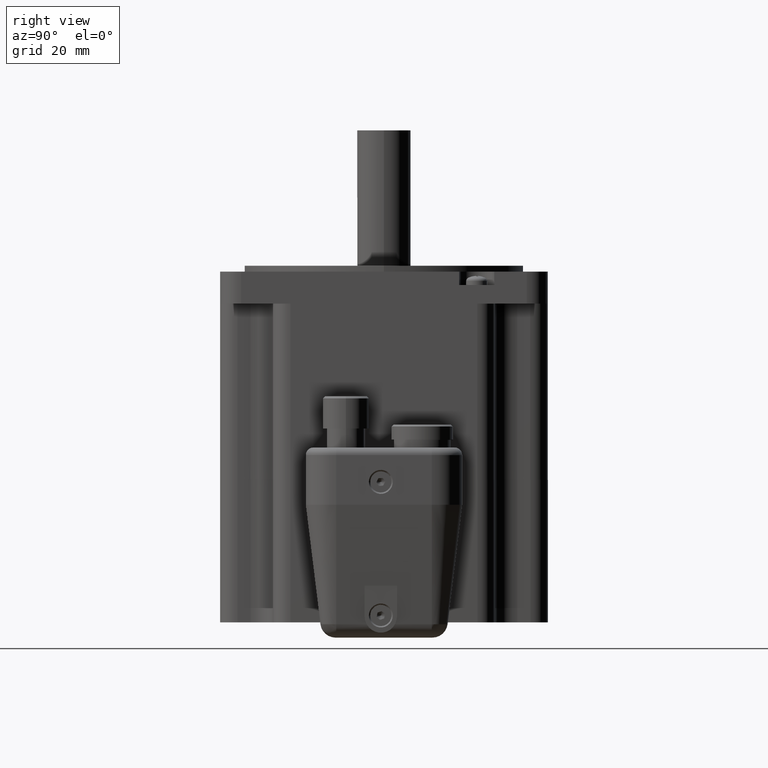
[diagram: clean part render]
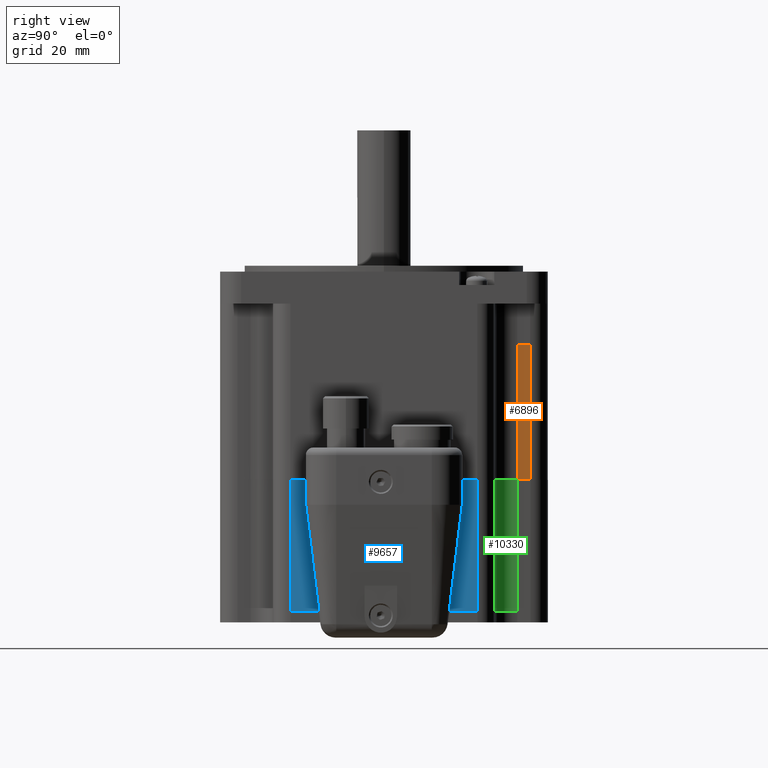
[diagram: same view with three faces highlighted in distinct colors, each labeled with its STEP entity id]
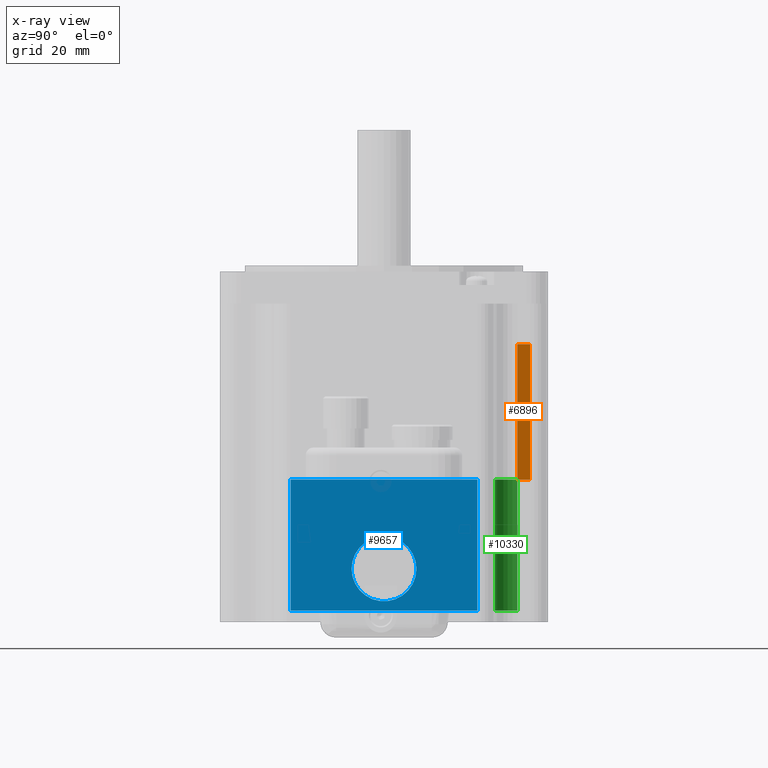
[diagram: x-ray of the same camera — body ghosted, the three highlighted faces saturated]
A machine part, right view with three faces highlighted in distinct colors.
The next image is the same camera in x-ray (body ghosted, the three faces saturated) — at least one of them is partly hidden behind the body in this view.
Their STEP definitions:

[orange] entity #6896 — the highlighted planar face has unit normal (1, 0, 0).
#6565=CARTESIAN_POINT('',(29.050000000000008,38.324999999999996,-36.899999999999892));
#6566=VERTEX_POINT('',#6565);
#6574=CARTESIAN_POINT('',(29.050000000000008,34.950000000000003,-36.899999999999892));
#6575=VERTEX_POINT('',#6574);
#6576=CARTESIAN_POINT('',(29.050000000000011,34.950000000000003,-36.899999999999906));
#6577=DIRECTION('',(0.0,1.0,0.0));
#6578=VECTOR('',#6577,3.374999999999993);
#6579=LINE('',#6576,#6578);
#6580=EDGE_CURVE('',#6575,#6566,#6579,.T.);
#6838=CARTESIAN_POINT('',(29.050000000000011,34.949999999999982,-1.499999999999947));
#6839=VERTEX_POINT('',#6838);
#6840=CARTESIAN_POINT('',(29.050000000000011,34.950000000000003,-36.899999999999892));
#6841=DIRECTION('',(0.0,0.0,1.0));
#6842=VECTOR('',#6841,35.399999999999949);
#6843=LINE('',#6840,#6842);
#6844=EDGE_CURVE('',#6575,#6839,#6843,.T.);
#6873=CARTESIAN_POINT('',(29.050000000000011,42.924999999999983,-94.899999999999977));
#6874=DIRECTION('',(1.0,0.0,0.0));
#6875=DIRECTION('',(0.0,0.0,-1.0));
#6876=AXIS2_PLACEMENT_3D('',#6873,#6874,#6875);
#6877=PLANE('',#6876);
#6878=ORIENTED_EDGE('',*,*,#6580,.T.);
#6879=CARTESIAN_POINT('',(29.050000000000011,38.324999999999982,-1.499999999999947));
#6880=VERTEX_POINT('',#6879);
#6881=CARTESIAN_POINT('',(29.050000000000011,38.324999999999996,-1.499999999999947));
#6882=DIRECTION('',(0.0,0.0,-1.0));
#6883=VECTOR('',#6882,35.399999999999949);
#6884=LINE('',#6881,#6883);
#6885=EDGE_CURVE('',#6880,#6566,#6884,.T.);
#6886=ORIENTED_EDGE('',*,*,#6885,.F.);
#6887=CARTESIAN_POINT('',(29.050000000000011,38.324999999999982,-1.499999999999947));
#6888=DIRECTION('',(0.0,-1.0,0.0));
#6889=VECTOR('',#6888,3.375);
#6890=LINE('',#6887,#6889);
#6891=EDGE_CURVE('',#6880,#6839,#6890,.T.);
#6892=ORIENTED_EDGE('',*,*,#6891,.T.);
#6893=ORIENTED_EDGE('',*,*,#6844,.F.);
#6894=EDGE_LOOP('',(#6878,#6886,#6892,#6893));
#6895=FACE_OUTER_BOUND('',#6894,.T.);
#6896=ADVANCED_FACE('',(#6895),#6877,.T.);

[blue] entity #9657 — the highlighted planar face has unit normal (1, 0, 0).
#8183=CARTESIAN_POINT('',(42.924999999999997,-8.474999999999991,-60.299999999999905));
#8184=VERTEX_POINT('',#8183);
#8185=CARTESIAN_POINT('',(42.924999999999997,0.025000000000013,-60.299999999999905));
#8186=DIRECTION('',(-1.0,0.0,0.0));
#8187=DIRECTION('',(0.0,1.0,0.0));
#8188=AXIS2_PLACEMENT_3D('',#8185,#8186,#8187);
#8189=CIRCLE('',#8188,8.500000000000004);
#8190=EDGE_CURVE('',#8184,#8184,#8189,.T.);
#9589=CARTESIAN_POINT('',(42.924999999999997,24.475000000000016,-71.299999999999912));
#9590=VERTEX_POINT('',#9589);
#9606=CARTESIAN_POINT('',(42.924999999999997,24.475000000000016,-36.899999999999913));
#9607=VERTEX_POINT('',#9606);
#9615=CARTESIAN_POINT('',(42.924999999999997,24.475000000000016,-71.299999999999912));
#9616=DIRECTION('',(0.0,0.0,1.0));
#9617=VECTOR('',#9616,34.399999999999999);
#9618=LINE('',#9615,#9617);
#9619=EDGE_CURVE('',#9590,#9607,#9618,.T.);
#9624=CARTESIAN_POINT('',(42.924999999999997,-24.424999999999994,-71.299999999999912));
#9625=DIRECTION('',(1.0,0.0,0.0));
#9626=DIRECTION('',(0.0,1.0,0.0));
#9627=AXIS2_PLACEMENT_3D('',#9624,#9625,#9626);
#9628=PLANE('',#9627);
#9629=CARTESIAN_POINT('',(42.924999999999997,-24.424999999999994,-71.299999999999912));
#9630=VERTEX_POINT('',#9629);
#9631=CARTESIAN_POINT('',(42.924999999999997,24.475000000000012,-71.299999999999912));
#9632=DIRECTION('',(0.0,-1.0,0.0));
#9633=VECTOR('',#9632,48.900000000000006);
#9634=LINE('',#9631,#9633);
#9635=EDGE_CURVE('',#9590,#9630,#9634,.T.);
#9636=ORIENTED_EDGE('',*,*,#9635,.F.);
#9637=ORIENTED_EDGE('',*,*,#9619,.T.);
#9638=CARTESIAN_POINT('',(42.924999999999997,-24.424999999999997,-36.899999999999913));
#9639=VERTEX_POINT('',#9638);
#9640=CARTESIAN_POINT('',(42.924999999999997,-24.424999999999994,-36.899999999999913));
#9641=DIRECTION('',(0.0,1.0,0.0));
#9642=VECTOR('',#9641,48.900000000000006);
#9643=LINE('',#9640,#9642);
#9644=EDGE_CURVE('',#9639,#9607,#9643,.T.);
#9645=ORIENTED_EDGE('',*,*,#9644,.F.);
#9646=CARTESIAN_POINT('',(42.924999999999997,-24.424999999999994,-71.299999999999912));
#9647=DIRECTION('',(0.0,0.0,1.0));
#9648=VECTOR('',#9647,34.399999999999999);
#9649=LINE('',#9646,#9648);
#9650=EDGE_CURVE('',#9630,#9639,#9649,.T.);
#9651=ORIENTED_EDGE('',*,*,#9650,.F.);
#9652=EDGE_LOOP('',(#9636,#9637,#9645,#9651));
#9653=FACE_OUTER_BOUND('',#9652,.T.);
#9654=ORIENTED_EDGE('',*,*,#8190,.T.);
#9655=EDGE_LOOP('',(#9654));
#9656=FACE_BOUND('',#9655,.T.);
#9657=ADVANCED_FACE('',(#9653,#9656),#9628,.T.);

[green] entity #10330 — the highlighted cylindrical surface (edge-blend (fillet) strip) has radius 5.9 mm, axis along (0, 0, 1).
#10272=CARTESIAN_POINT('',(29.024999999999991,34.975000000000016,-71.299999999999912));
#10273=VERTEX_POINT('',#10272);
#10281=CARTESIAN_POINT('',(29.024999999999991,34.975000000000016,-36.899999999999913));
#10282=VERTEX_POINT('',#10281);
#10289=CARTESIAN_POINT('',(29.024999999999991,34.975000000000016,-71.299999999999912));
#10290=DIRECTION('',(0.0,0.0,1.0));
#10291=VECTOR('',#10290,34.399999999999999);
#10292=LINE('',#10289,#10291);
#10293=EDGE_CURVE('',#10273,#10282,#10292,.T.);
#10298=CARTESIAN_POINT('',(34.92499999999999,34.975000000000016,-71.299999999999912));
#10299=DIRECTION('',(0.0,0.0,1.0));
#10300=DIRECTION('',(0.0,1.0,0.0));
#10301=AXIS2_PLACEMENT_3D('',#10298,#10299,#10300);
#10302=CYLINDRICAL_SURFACE('',#10301,5.899999999999999);
#10303=CARTESIAN_POINT('',(34.92499999999999,29.075000000000017,-71.299999999999912));
#10304=VERTEX_POINT('',#10303);
#10305=CARTESIAN_POINT('',(34.92499999999999,34.975000000000016,-71.299999999999912));
#10306=DIRECTION('',(0.0,0.0,1.0));
#10307=DIRECTION('',(0.0,1.0,0.0));
#10308=AXIS2_PLACEMENT_3D('',#10305,#10306,#10307);
#10309=CIRCLE('',#10308,5.899999999999999);
#10310=EDGE_CURVE('',#10273,#10304,#10309,.T.);
#10311=ORIENTED_EDGE('',*,*,#10310,.F.);
#10312=ORIENTED_EDGE('',*,*,#10293,.T.);
#10313=CARTESIAN_POINT('',(34.92499999999999,29.075000000000017,-36.899999999999913));
#10314=VERTEX_POINT('',#10313);
#10315=CARTESIAN_POINT('',(34.92499999999999,34.975000000000016,-36.899999999999913));
#10316=DIRECTION('',(0.0,0.0,-1.0));
#10317=DIRECTION('',(0.0,1.0,0.0));
#10318=AXIS2_PLACEMENT_3D('',#10315,#10316,#10317);
#10319=CIRCLE('',#10318,5.899999999999999);
#10320=EDGE_CURVE('',#10314,#10282,#10319,.T.);
#10321=ORIENTED_EDGE('',*,*,#10320,.F.);
#10322=CARTESIAN_POINT('',(34.92499999999999,29.075000000000017,-71.299999999999912));
#10323=DIRECTION('',(0.0,0.0,1.0));
#10324=VECTOR('',#10323,34.399999999999999);
#10325=LINE('',#10322,#10324);
#10326=EDGE_CURVE('',#10304,#10314,#10325,.T.);
#10327=ORIENTED_EDGE('',*,*,#10326,.F.);
#10328=EDGE_LOOP('',(#10311,#10312,#10321,#10327));
#10329=FACE_OUTER_BOUND('',#10328,.T.);
#10330=ADVANCED_FACE('',(#10329),#10302,.F.);